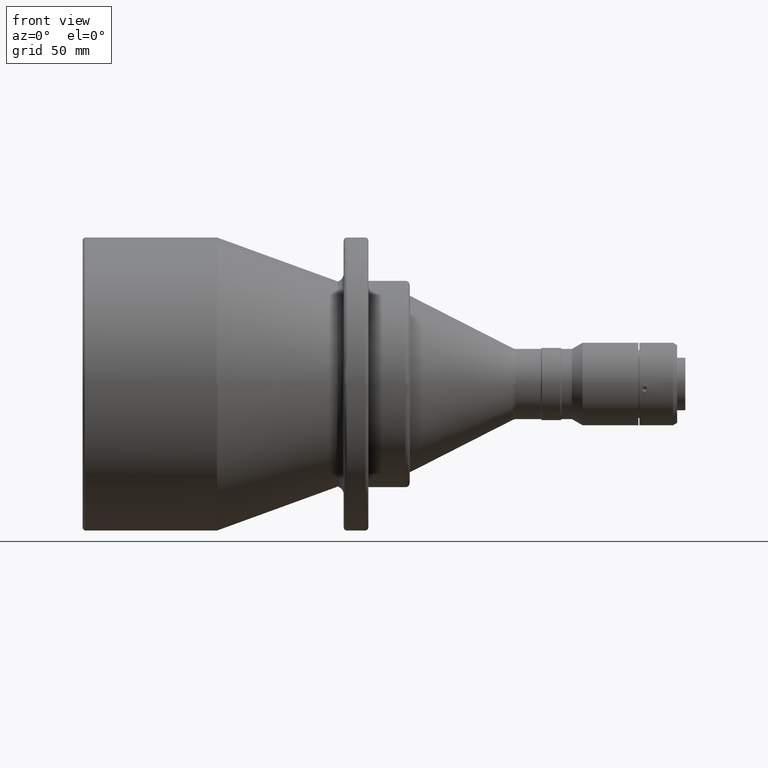
[diagram: clean part render]
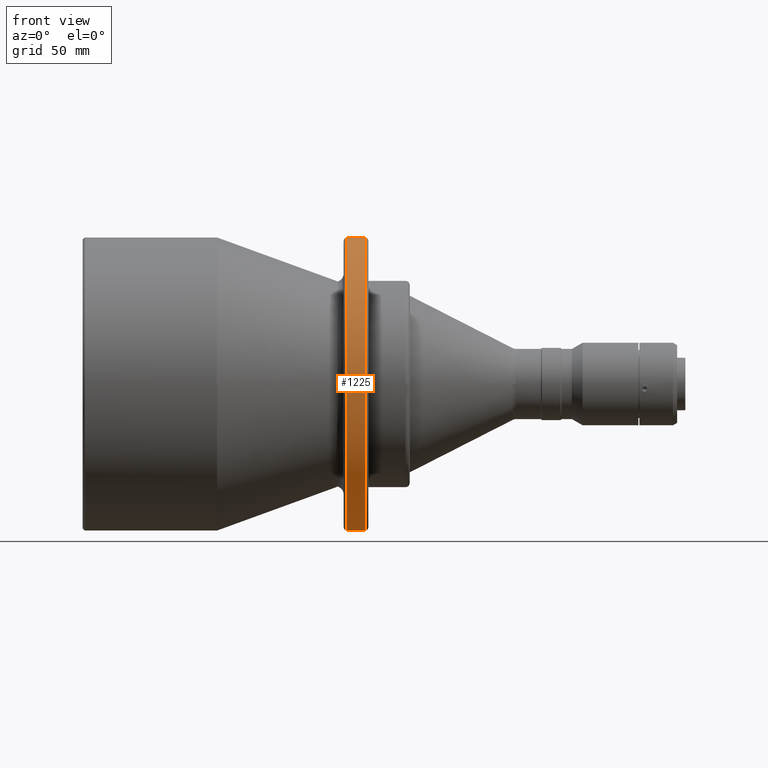
[diagram: same view with one face highlighted and labeled with its STEP entity id]
A machine part, front view. The second image highlights one B-rep face of the part: STEP entity #1225.
In plain terms, the highlighted cylindrical surface (partial cylindrical patch) has radius 71 mm, axis along (1, 0, -0).
Its self-contained STEP definition (entity closure, byte-faithful):
#123 = DIRECTION ( 'NONE',  ( 0.0000000000000000000, 0.0000000000000000000, -1.000000000000000000 ) ) ;
#373 = LINE ( 'NONE', #2772, #2390 ) ;
#377 = VECTOR ( 'NONE', #2448, 1000.000000000000000 ) ;
#390 = DIRECTION ( 'NONE',  ( 2.443272501375784200E-017, 1.000000000000000000, 0.0000000000000000000 ) ) ;
#446 = CARTESIAN_POINT ( 'NONE',  ( -9.050000000000002500, 0.0000000000000000000, 0.0000000000000000000 ) ) ;
#607 = ORIENTED_EDGE ( 'NONE', *, *, #2796, .F. ) ;
#660 = DIRECTION ( 'NONE',  ( 1.000000000000000000, 0.0000000000000000000, -0.0000000000000000000 ) ) ;
#726 = DIRECTION ( 'NONE',  ( 4.886545002747360900E-017, 0.0000000000000000000, 1.000000000000000000 ) ) ;
#728 = FACE_OUTER_BOUND ( 'NONE', #2552, .T. ) ;
#743 = AXIS2_PLACEMENT_3D ( 'NONE', #1771, #1465, #390 ) ;
#764 = DIRECTION ( 'NONE',  ( 1.000000000000000000, 0.0000000000000000000, 0.0000000000000000000 ) ) ;
#827 = CARTESIAN_POINT ( 'NONE',  ( -18.05000000000000100, 0.0000000000000000000, 0.0000000000000000000 ) ) ;
#949 = CIRCLE ( 'NONE', #743, 71.00000000000001400 ) ;
#955 = CARTESIAN_POINT ( 'NONE',  ( -18.05000000051818900, -71.00000000004587300, -7.281171712294257400E-009 ) ) ;
#1094 = CARTESIAN_POINT ( 'NONE',  ( -18.05000000000000100, 0.0000000000000000000, -71.00000000000001400 ) ) ;
#1108 = EDGE_CURVE ( 'NONE', #4330, #3601, #3592, .T. ) ;
#1160 = EDGE_CURVE ( 'NONE', #1511, #3226, #949, .T. ) ;
#1225 = ADVANCED_FACE ( 'NONE', ( #728 ), #2080, .T. ) ;
#1232 = CARTESIAN_POINT ( 'NONE',  ( -9.049999999827273100, -71.00000000001530500, -2.184351513688277200E-008 ) ) ;
#1315 = ORIENTED_EDGE ( 'NONE', *, *, #1108, .T. ) ;
#1353 = AXIS2_PLACEMENT_3D ( 'NONE', #1461, #1488, #726 ) ;
#1461 = CARTESIAN_POINT ( 'NONE',  ( -18.05000000069091100, 0.0000000000000000000, 0.0000000000000000000 ) ) ;
#1465 = DIRECTION ( 'NONE',  ( 1.000000000000000000, 0.0000000000000000000, 0.0000000000000000000 ) ) ;
#1488 = DIRECTION ( 'NONE',  ( -1.000000000000000000, 0.0000000000000000000, 2.443272501373681000E-017 ) ) ;
#1505 = ORIENTED_EDGE ( 'NONE', *, *, #1874, .F. ) ;
#1506 = CARTESIAN_POINT ( 'NONE',  ( -9.050000000000002500, 0.0000000000000000000, -71.00000000000001400 ) ) ;
#1511 = VERTEX_POINT ( 'NONE', #1618 ) ;
#1618 = CARTESIAN_POINT ( 'NONE',  ( -9.050000000000002500, 8.694992273946208100E-015, 71.00000000000001400 ) ) ;
#1718 = EDGE_CURVE ( 'NONE', #3906, #3340, #2227, .T. ) ;
#1744 = EDGE_CURVE ( 'NONE', #3340, #1511, #373, .T. ) ;
#1755 = DIRECTION ( 'NONE',  ( 2.443272501375784200E-017, 1.000000000000000000, 0.0000000000000000000 ) ) ;
#1771 = CARTESIAN_POINT ( 'NONE',  ( -9.050000000000002500, 0.0000000000000000000, 0.0000000000000000000 ) ) ;
#1845 = CIRCLE ( 'NONE', #1353, 71.00000000006114900 ) ;
#1874 = EDGE_CURVE ( 'NONE', #4330, #3906, #1845, .T. ) ;
#1931 = ORIENTED_EDGE ( 'NONE', *, *, #1744, .F. ) ;
#2027 = AXIS2_PLACEMENT_3D ( 'NONE', #446, #764, #1755 ) ;
#2080 = CYLINDRICAL_SURFACE ( 'NONE', #2813, 71.00000000000001400 ) ;
#2165 = CIRCLE ( 'NONE', #2027, 71.00000000000001400 ) ;
#2227 = CIRCLE ( 'NONE', #2469, 71.00000000006113500 ) ;
#2390 = VECTOR ( 'NONE', #660, 1000.000000000000000 ) ;
#2404 = ORIENTED_EDGE ( 'NONE', *, *, #1160, .F. ) ;
#2448 = DIRECTION ( 'NONE',  ( 1.000000000000000000, 0.0000000000000000000, -0.0000000000000000000 ) ) ;
#2469 = AXIS2_PLACEMENT_3D ( 'NONE', #4043, #2709, #3764 ) ;
#2552 = EDGE_LOOP ( 'NONE', ( #1931, #3688, #1505, #1315, #607, #2404 ) ) ;
#2661 = CARTESIAN_POINT ( 'NONE',  ( -18.05000000069091100, 8.694992273946208100E-015, 71.00000000000001400 ) ) ;
#2709 = DIRECTION ( 'NONE',  ( -1.000000000000000000, 0.0000000000000000000, 0.0000000000000000000 ) ) ;
#2734 = CARTESIAN_POINT ( 'NONE',  ( -18.05000000069091500, 0.0000000000000000000, -71.00000000000001400 ) ) ;
#2772 = CARTESIAN_POINT ( 'NONE',  ( -18.05000000000000100, 8.694992273946208100E-015, 71.00000000000001400 ) ) ;
#2796 = EDGE_CURVE ( 'NONE', #3226, #3601, #2165, .T. ) ;
#2813 = AXIS2_PLACEMENT_3D ( 'NONE', #827, #3856, #123 ) ;
#3226 = VERTEX_POINT ( 'NONE', #1232 ) ;
#3340 = VERTEX_POINT ( 'NONE', #2661 ) ;
#3592 = LINE ( 'NONE', #1094, #377 ) ;
#3601 = VERTEX_POINT ( 'NONE', #1506 ) ;
#3688 = ORIENTED_EDGE ( 'NONE', *, *, #1718, .F. ) ;
#3764 = DIRECTION ( 'NONE',  ( 0.0000000000000000000, 0.0000000000000000000, 1.000000000000000000 ) ) ;
#3856 = DIRECTION ( 'NONE',  ( 1.000000000000000000, 0.0000000000000000000, -0.0000000000000000000 ) ) ;
#3906 = VERTEX_POINT ( 'NONE', #955 ) ;
#4043 = CARTESIAN_POINT ( 'NONE',  ( -18.05000000069091100, 0.0000000000000000000, 0.0000000000000000000 ) ) ;
#4330 = VERTEX_POINT ( 'NONE', #2734 ) ;